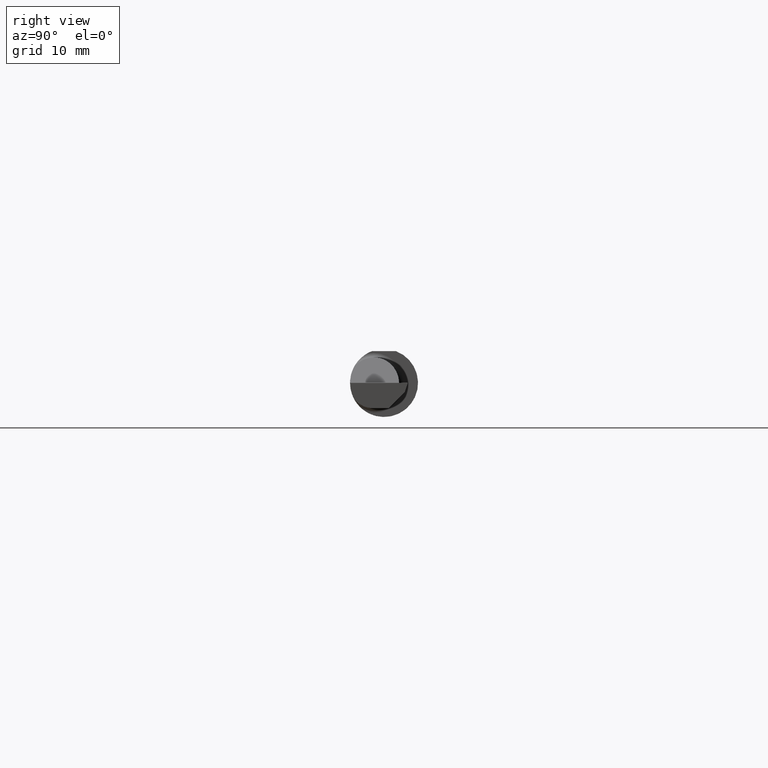
[diagram: clean part render]
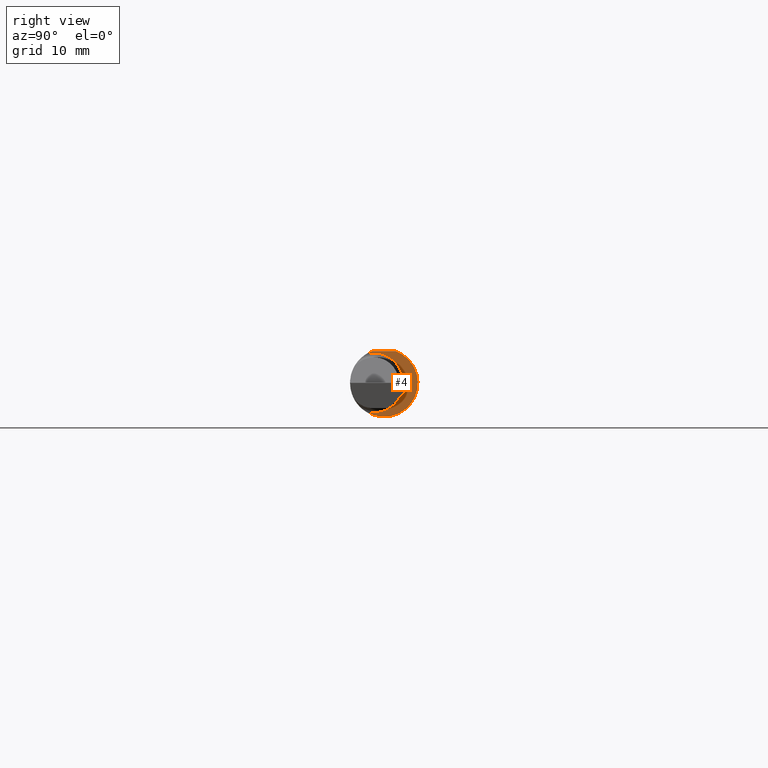
[diagram: same view with one face highlighted and labeled with its STEP entity id]
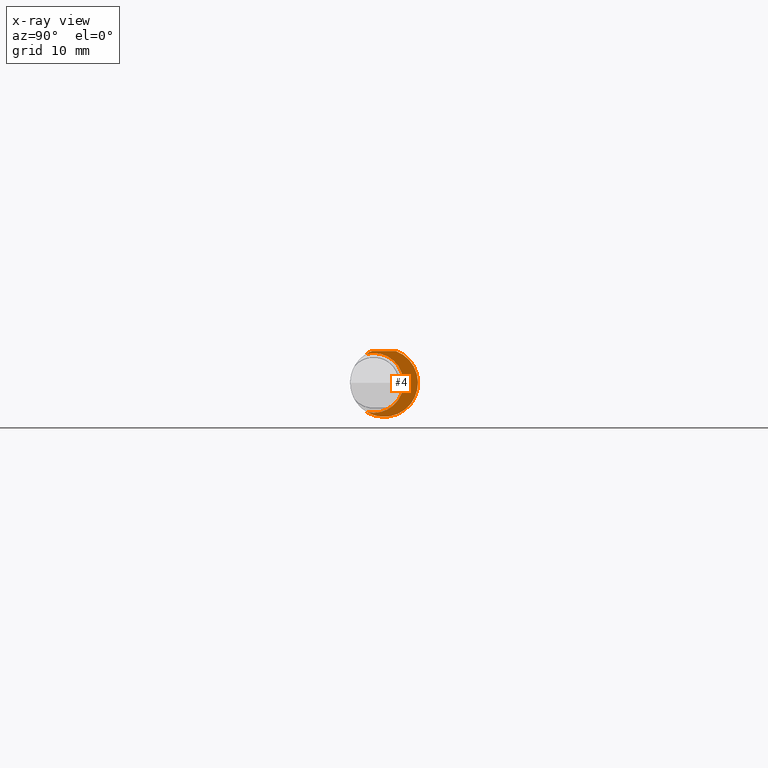
[diagram: x-ray of the same camera — body ghosted, the highlighted face saturated]
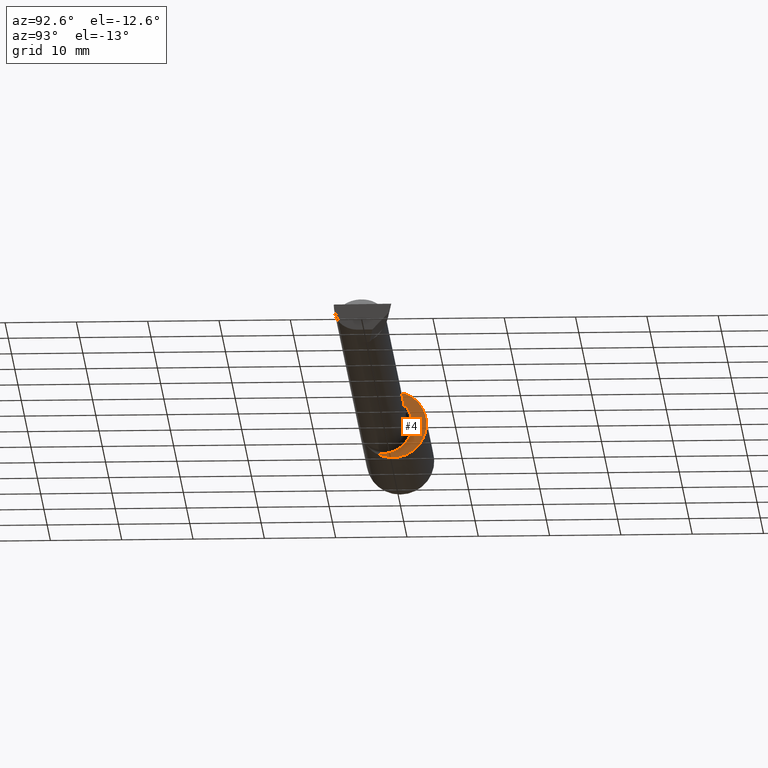
[diagram: same view with one face highlighted and labeled with its STEP entity id]
A machine part, right view. The second image highlights one B-rep face of the part: STEP entity #4.
The next image is the same camera in x-ray: the body ghosted, the highlighted face saturated — about 3% of this face is hidden behind the body in this view.
A second angle (auxiliary view) of the same face is appended — the face is thin or edge-on in the first view.
In plain terms, the highlighted planar face has unit normal (1, 0, 0).
Its self-contained STEP definition (entity closure, byte-faithful):
#4 = ADVANCED_FACE ( 'NONE', ( #122 ), #74, .T. ) ;
#27 = AXIS2_PLACEMENT_3D ( 'NONE', #275, #475, #509 ) ;
#30 = LINE ( 'NONE', #593, #166 ) ;
#64 = VERTEX_POINT ( 'NONE', #441 ) ;
#65 = DIRECTION ( 'NONE',  ( 0.000000000000000000, 1.000000000000000000, 0.000000000000000000 ) ) ;
#74 = PLANE ( 'NONE',  #27 ) ;
#100 = ORIENTED_EDGE ( 'NONE', *, *, #350, .T. ) ;
#114 = CARTESIAN_POINT ( 'NONE',  ( 0.9499999999999999556, 0.06597272163553663527, 0.1753499999999999781 ) ) ;
#122 = FACE_OUTER_BOUND ( 'NONE', #463, .T. ) ;
#136 = CARTESIAN_POINT ( 'NONE',  ( 0.9499999999999999556, -0.05740000000000001351, 0.000000000000000000 ) ) ;
#166 = VECTOR ( 'NONE', #229, 39.37007874015748143 ) ;
#206 = VERTEX_POINT ( 'NONE', #214 ) ;
#214 = CARTESIAN_POINT ( 'NONE',  ( 0.9499999999999999556, -0.09715400696864176511, -0.1601908905959920915 ) ) ;
#215 = EDGE_CURVE ( 'NONE', #64, #222, #529, .T. ) ;
#222 = VERTEX_POINT ( 'NONE', #625 ) ;
#227 = AXIS2_PLACEMENT_3D ( 'NONE', #370, #363, #65 ) ;
#229 = DIRECTION ( 'NONE',  ( 4.268512490100411279E-18, -1.000000000000000000, 1.438723400918613551E-16 ) ) ;
#275 = CARTESIAN_POINT ( 'NONE',  ( 0.9499999999999999556, 0.1076499999999997320, 0.000000000000000000 ) ) ;
#279 = CIRCLE ( 'NONE', #459, 0.1873499999999999888 ) ;
#289 = DIRECTION ( 'NONE',  ( 1.000000000000000000, 4.268512490100411279E-18, 0.000000000000000000 ) ) ;
#338 = DIRECTION ( 'NONE',  ( -1.000000000000000000, -4.268512490100411279E-18, -0.000000000000000000 ) ) ;
#339 = CIRCLE ( 'NONE', #451, 0.1650499999999997525 ) ;
#350 = EDGE_CURVE ( 'NONE', #206, #554, #279, .T. ) ;
#363 = DIRECTION ( 'NONE',  ( 1.000000000000000000, 4.268512490100411279E-18, 0.000000000000000000 ) ) ;
#370 = CARTESIAN_POINT ( 'NONE',  ( 0.9499999999999999556, 0.000000000000000000, 0.000000000000000000 ) ) ;
#397 = ORIENTED_EDGE ( 'NONE', *, *, #215, .T. ) ;
#409 = EDGE_CURVE ( 'NONE', #222, #206, #339, .T. ) ;
#441 = CARTESIAN_POINT ( 'NONE',  ( 0.9499999999999999556, -0.06597272163553666302, 0.1753499999999999781 ) ) ;
#449 = EDGE_CURVE ( 'NONE', #554, #64, #30, .T. ) ;
#451 = AXIS2_PLACEMENT_3D ( 'NONE', #136, #338, #532 ) ;
#459 = AXIS2_PLACEMENT_3D ( 'NONE', #632, #289, #537 ) ;
#463 = EDGE_LOOP ( 'NONE', ( #100, #570, #397, #548 ) ) ;
#475 = DIRECTION ( 'NONE',  ( 1.000000000000000000, 4.268512490100411279E-18, 0.000000000000000000 ) ) ;
#509 = DIRECTION ( 'NONE',  ( -4.268512490100411279E-18, 1.000000000000000000, 0.000000000000000000 ) ) ;
#529 = CIRCLE ( 'NONE', #227, 0.1873499999999999888 ) ;
#532 = DIRECTION ( 'NONE',  ( 0.000000000000000000, -1.000000000000000000, 0.000000000000000000 ) ) ;
#537 = DIRECTION ( 'NONE',  ( 0.000000000000000000, 1.000000000000000000, 0.000000000000000000 ) ) ;
#548 = ORIENTED_EDGE ( 'NONE', *, *, #409, .T. ) ;
#554 = VERTEX_POINT ( 'NONE', #114 ) ;
#570 = ORIENTED_EDGE ( 'NONE', *, *, #449, .T. ) ;
#593 = CARTESIAN_POINT ( 'NONE',  ( 0.9499999999999999556, 0.2373500000000000332, 0.1753499999999999504 ) ) ;
#625 = CARTESIAN_POINT ( 'NONE',  ( 0.9499999999999999556, -0.09715400696864176511, 0.1601908905959920915 ) ) ;
#632 = CARTESIAN_POINT ( 'NONE',  ( 0.9499999999999999556, 0.000000000000000000, 0.000000000000000000 ) ) ;